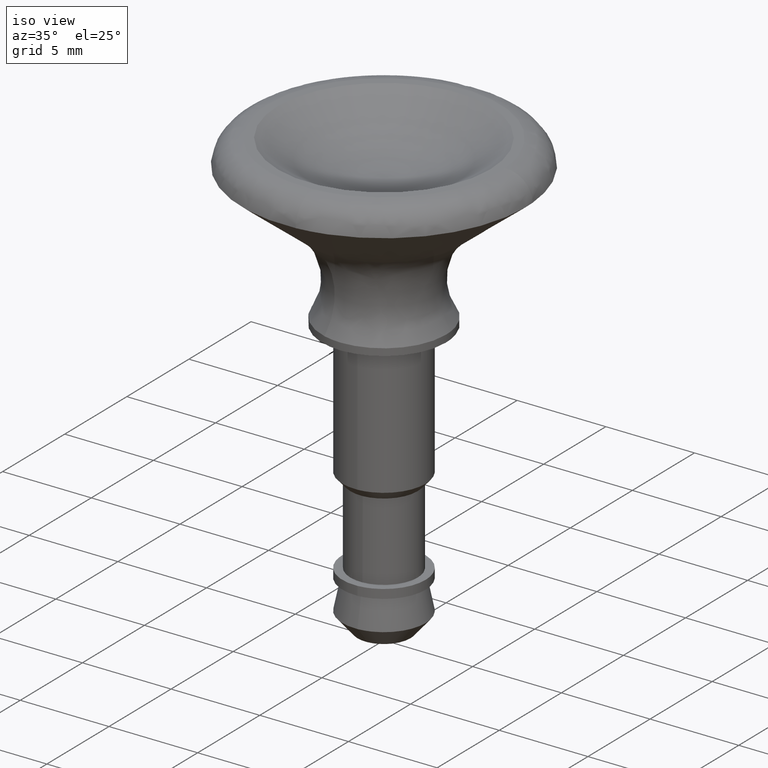
[diagram: clean part render]
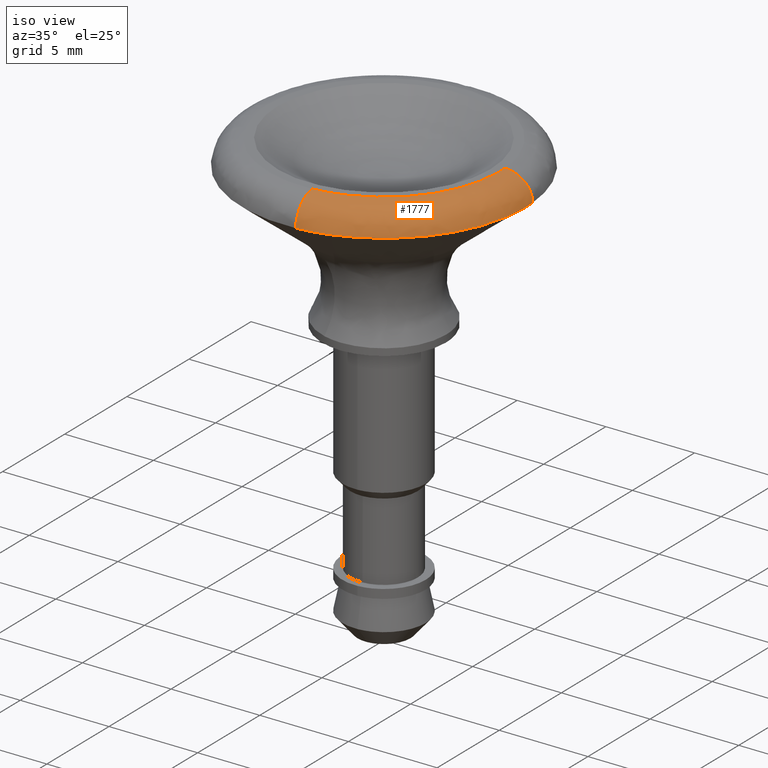
[diagram: same view with one face highlighted and labeled with its STEP entity id]
A machine part, iso view. The second image highlights one B-rep face of the part: STEP entity #1777.
In plain terms, the highlighted face is a freeform B-spline surface patch.
Its self-contained STEP definition (entity closure, byte-faithful):
#1396=CARTESIAN_POINT('',(7.977063061677898,0.602598721049658,8.102537257117039));
#1397=VERTEX_POINT('',#1396);
#1411=CARTESIAN_POINT('',(7.999791268970030,0.0,8.102537222004742));
#1412=VERTEX_POINT('',#1411);
#1413=CARTESIAN_POINT('',(7.977063061677898,0.602598721049658,8.102537257117039));
#1414=CARTESIAN_POINT('',(7.999791268970030,0.301727980283217,8.102537222004742));
#1415=CARTESIAN_POINT('',(7.999791268970030,0.0,8.102537222004742));
#1423=(BOUNDED_CURVE()B_SPLINE_CURVE(2,(#1413,#1414,#1415),.UNSPECIFIED.,.F.,.U.)B_SPLINE_CURVE_WITH_KNOTS((3,3),(0.486870159260233,0.500000000000000),.UNSPECIFIED.)CURVE()GEOMETRIC_REPRESENTATION_ITEM()RATIONAL_B_SPLINE_CURVE((0.970850634522784,0.984617434732887,1.0))REPRESENTATION_ITEM(''));
#1424=EDGE_CURVE('',#1397,#1412,#1423,.T.);
#1426=CARTESIAN_POINT('',(0.602598721049395,-7.977063061677919,8.102537257117046));
#1427=VERTEX_POINT('',#1426);
#1428=CARTESIAN_POINT('',(7.999791268970030,0.0,8.102537222004742));
#1429=CARTESIAN_POINT('',(7.999791268970030,-7.418268588651327,8.102537222004742));
#1430=CARTESIAN_POINT('',(0.602598721049395,-7.977063061677919,8.102537257117046));
#1438=(BOUNDED_CURVE()B_SPLINE_CURVE(2,(#1428,#1429,#1430),.UNSPECIFIED.,.F.,.U.)B_SPLINE_CURVE_WITH_KNOTS((3,3),(0.500000000000000,0.736870159260245),.UNSPECIFIED.)CURVE()GEOMETRIC_REPRESENTATION_ITEM()RATIONAL_B_SPLINE_CURVE((1.0,0.722489346453647,0.970850634522809))REPRESENTATION_ITEM(''));
#1439=EDGE_CURVE('',#1412,#1427,#1438,.T.);
#1658=CARTESIAN_POINT('',(0.489872814608703,-6.484823477230933,9.499999999999901));
#1659=VERTEX_POINT('',#1658);
#1660=CARTESIAN_POINT('',(0.489872814608703,-6.484823477230933,9.499999999999901));
#1661=CARTESIAN_POINT('',(0.595386028018198,-7.881583093405029,9.499999997797451));
#1662=CARTESIAN_POINT('',(0.602598721049395,-7.977063061677919,8.102537257117046));
#1670=(BOUNDED_CURVE()B_SPLINE_CURVE(2,(#1660,#1661,#1662),.UNSPECIFIED.,.F.,.U.)B_SPLINE_CURVE_WITH_KNOTS((3,3),(-1.726123027002029,-0.279789030406771),.UNSPECIFIED.)CURVE()GEOMETRIC_REPRESENTATION_ITEM()RATIONAL_B_SPLINE_CURVE((0.891658472532791,0.650974875835408,0.889698838713015))REPRESENTATION_ITEM(''));
#1671=EDGE_CURVE('',#1659,#1427,#1670,.T.);
#1690=CARTESIAN_POINT('',(6.484823477214378,0.489872814605042,9.499999999999901));
#1691=VERTEX_POINT('',#1690);
#1707=CARTESIAN_POINT('',(6.484823477214377,0.489872814605042,9.499999999999901));
#1708=CARTESIAN_POINT('',(7.881583093402902,0.595386028018038,9.499999997828798));
#1709=CARTESIAN_POINT('',(7.977063061677898,0.602598721049658,8.102537257117039));
#1717=(BOUNDED_CURVE()B_SPLINE_CURVE(2,(#1707,#1708,#1709),.UNSPECIFIED.,.F.,.U.)B_SPLINE_CURVE_WITH_KNOTS((3,3),(-1.726123027025767,-0.279789030406761),.UNSPECIFIED.)CURVE()GEOMETRIC_REPRESENTATION_ITEM()RATIONAL_B_SPLINE_CURVE((0.891658472540692,0.650974875831489,0.889698838713018))REPRESENTATION_ITEM(''));
#1718=EDGE_CURVE('',#1691,#1397,#1717,.T.);
#1726=CARTESIAN_POINT('',(6.384420276549853,0.482288213497938,9.496616741639675));
#1727=CARTESIAN_POINT('',(6.866708490047792,-5.902132063051912,9.496616741639675));
#1728=CARTESIAN_POINT('',(0.482288213497938,-6.384420276549853,9.496616741639675));
#1729=CARTESIAN_POINT('',(7.978832327682682,0.602732373877678,9.604191104324436));
#1730=CARTESIAN_POINT('',(8.581564701560358,-7.376099953805001,9.604191104324434));
#1731=CARTESIAN_POINT('',(0.602732373877678,-7.978832327682682,9.604191104324436));
#1732=CARTESIAN_POINT('',(7.980560951342619,0.602862956574407,8.001622596309066));
#1733=CARTESIAN_POINT('',(8.583423907917023,-7.377697994768210,8.001622596309062));
#1734=CARTESIAN_POINT('',(0.602862956574407,-7.980560951342619,8.001622596309066));
#1742=(BOUNDED_SURFACE()B_SPLINE_SURFACE(2,2,((#1726,#1729,#1732),(#1727,#1730,#1733),(#1728,#1731,#1734)),.UNSPECIFIED.,.F.,.F.,.U.)B_SPLINE_SURFACE_WITH_KNOTS((3,3),(3,3),(0.0,13.260300160896270),(0.0,2.602244085967726),.UNSPECIFIED.)GEOMETRIC_REPRESENTATION_ITEM()RATIONAL_B_SPLINE_SURFACE(((0.916898960836247,0.625832283902135,0.914743534459565),(0.648345472870209,0.442530251832664,0.646821356262909),(0.916898960836247,0.625832283902135,0.914743534459565)))REPRESENTATION_ITEM('')SURFACE());
#1743=ORIENTED_EDGE('',*,*,#1439,.F.);
#1744=ORIENTED_EDGE('',*,*,#1424,.F.);
#1745=ORIENTED_EDGE('',*,*,#1718,.F.);
#1746=CARTESIAN_POINT('',(6.503300000000000,0.0,9.499999999999901));
#1747=VERTEX_POINT('',#1746);
#1748=CARTESIAN_POINT('',(6.484823477214378,0.489872814605042,9.499999999999901));
#1749=CARTESIAN_POINT('',(6.503300000000001,0.245284846679927,9.499999999999901));
#1750=CARTESIAN_POINT('',(6.503300000000000,0.0,9.499999999999901));
#1758=(BOUNDED_CURVE()B_SPLINE_CURVE(2,(#1748,#1749,#1750),.UNSPECIFIED.,.F.,.U.)B_SPLINE_CURVE_WITH_KNOTS((3,3),(0.486870159255589,0.500000000000000),.UNSPECIFIED.)CURVE()GEOMETRIC_REPRESENTATION_ITEM()RATIONAL_B_SPLINE_CURVE((0.970850634513045,0.984617434727446,1.0))REPRESENTATION_ITEM(''));
#1759=EDGE_CURVE('',#1691,#1747,#1758,.T.);
#1760=ORIENTED_EDGE('',*,*,#1759,.T.);
#1761=CARTESIAN_POINT('',(6.503300000000000,0.0,9.499999999999901));
#1762=CARTESIAN_POINT('',(6.503300000000001,-6.030560609544404,9.499999999999901));
#1763=CARTESIAN_POINT('',(0.489872814608703,-6.484823477230933,9.499999999999901));
#1771=(BOUNDED_CURVE()B_SPLINE_CURVE(2,(#1761,#1762,#1763),.UNSPECIFIED.,.F.,.U.)B_SPLINE_CURVE_WITH_KNOTS((3,3),(0.500000000000000,0.736870159255462),.UNSPECIFIED.)CURVE()GEOMETRIC_REPRESENTATION_ITEM()RATIONAL_B_SPLINE_CURVE((1.0,0.722489346459250,0.970850634512779))REPRESENTATION_ITEM(''));
#1772=EDGE_CURVE('',#1747,#1659,#1771,.T.);
#1773=ORIENTED_EDGE('',*,*,#1772,.T.);
#1774=ORIENTED_EDGE('',*,*,#1671,.T.);
#1775=EDGE_LOOP('',(#1743,#1744,#1745,#1760,#1773,#1774));
#1776=FACE_OUTER_BOUND('',#1775,.T.);
#1777=ADVANCED_FACE('',(#1776),#1742,.T.);